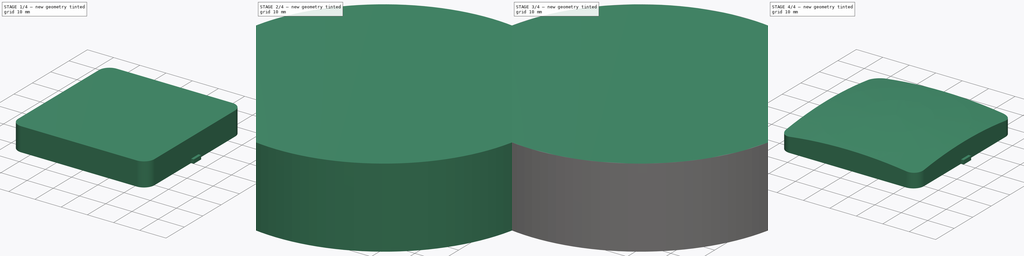
[diagram: build sequence overview — one tinted view per stage of 4, left to right]
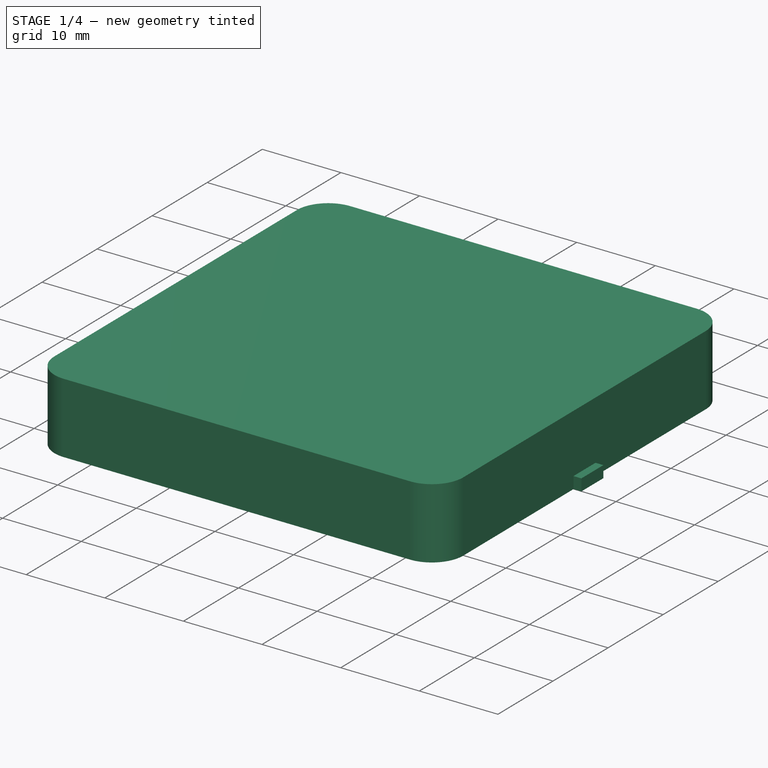
[diagram: stage 1 of 4 — iso view after this stage's code; geometry added in this stage tinted green]
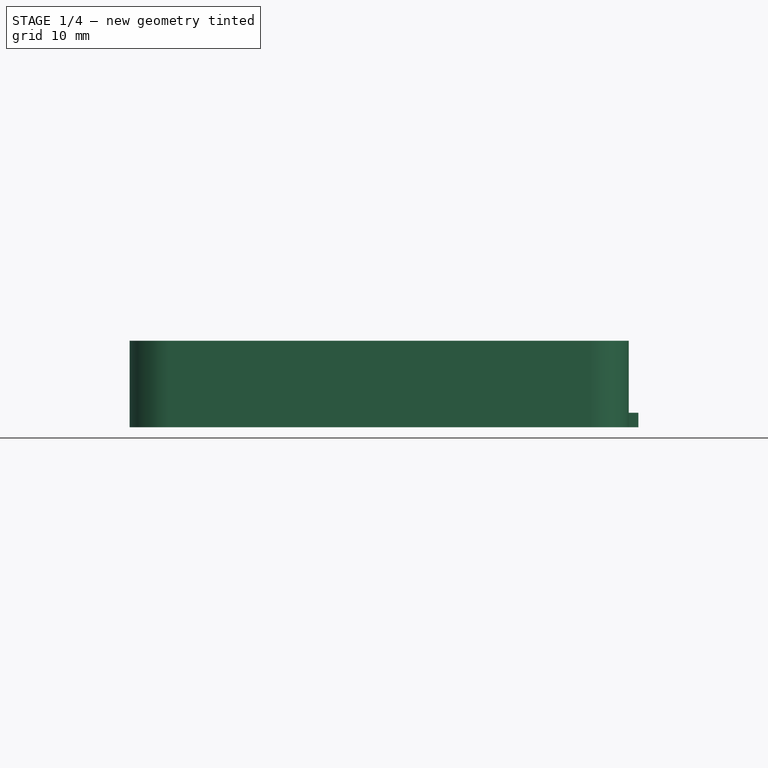
[diagram: stage 1 of 4 — front view after this stage's code; geometry added in this stage tinted green]
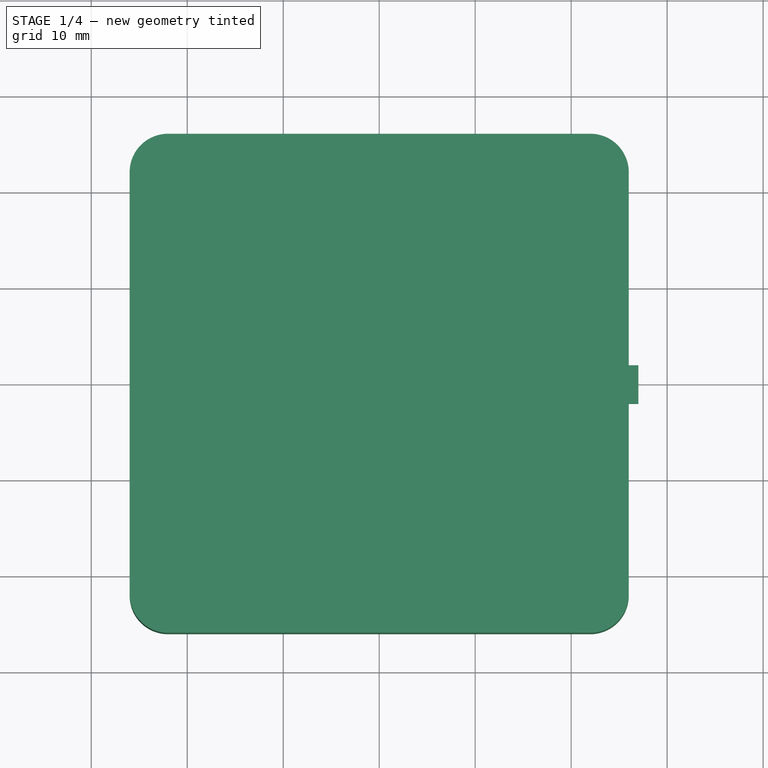
[diagram: stage 1 of 4 — top view after this stage's code; geometry added in this stage tinted green]
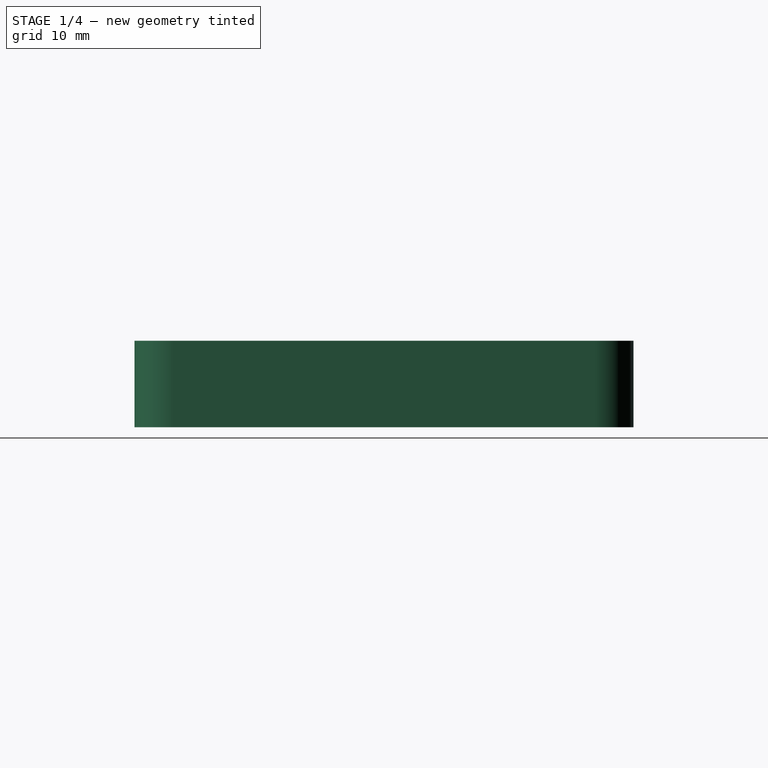
[diagram: stage 1 of 4 — right view after this stage's code; geometry added in this stage tinted green]
FCSTD DOCUMENT  (FreeCAD 0.19.4R1_voidlinux)
Label: front_glassv2
License: All rights reserved
LicenseURL: http://en.wikipedia.org/wiki/All_rights_reserved
objects: Sketcher::SketchObject×5, PartDesign::Body×4, PartDesign::Pad×3, Part::Cut×3, PartDesign::Revolution×2, PartDesign::Mirrored×1, PartDesign::CoordinateSystem×1, App::Part×1
note: 24 computed .brp shape members not serialized (recipe doc carries the construction recipe); baked Part::Feature solids carry a one-line shape summary decoded from their .brp
EXTERNAL_REF file=master_animator.FCStd obj=Variables

FEATURE [PartDesign::Body] Body002  label="external_cut"
  Group = -> [Sketch002,Revolution001]
  Origin = -> Origin003
  Tip = -> Revolution001
FEATURE [Sketcher::SketchObject] Sketch003
  FullyConstrained = true
  MapMode = 5
  Support = -> [XY_Plane004]
  sketch-geometry (10):
    g0: LineSegment StartX=-26 StartY=22 StartZ=0 EndX=-26 EndY=-22 EndZ=0
    g1: LineSegment StartX=26 StartY=22 StartZ=0 EndX=26 EndY=-22 EndZ=0
    g2: LineSegment StartX=-22 StartY=-26 StartZ=0 EndX=22 EndY=-26 EndZ=0
    g3: LineSegment StartX=-22 StartY=26 StartZ=0 EndX=22 EndY=26 EndZ=0
    g4: ArcOfCircle CenterX=-22 CenterY=22 CenterZ=0 NormalX=0 NormalY=0 NormalZ=1 AngleXU=0 Radius=4 StartAngle=1.57079 EndAngle=3.14159
    g5: ArcOfCircle CenterX=22 CenterY=22 CenterZ=0 NormalX=0 NormalY=0 NormalZ=1 AngleXU=0 Radius=4 StartAngle=6.28319 EndAngle=7.85398
    g6: ArcOfCircle CenterX=22 CenterY=-22 CenterZ=0 NormalX=0 NormalY=0 NormalZ=1 AngleXU=0 Radius=4 StartAngle=4.71239 EndAngle=6.28319
    g7: ArcOfCircle CenterX=-22 CenterY=-22 CenterZ=0 NormalX=0 NormalY=0 NormalZ=1 AngleXU=0 Radius=4 StartAngle=3.14159 EndAngle=4.71239
    g8: LineSegment StartX=-22 StartY=26 StartZ=0 EndX=-22 EndY=-26 EndZ=0
    g9: LineSegment StartX=-26 StartY=22 StartZ=0 EndX=26 EndY=22 EndZ=0
  constraints (31):
    c: Vertical(g0)
    c: Vertical(g1)
    c: Horizontal(g2)
    c: Horizontal(g3)
    c: Coincident(g4,g3)
    c: Coincident(g4,g0)
    c: Coincident(g5,g3)
    c: Coincident(g5,g1)
    c: Coincident(g6,g1)
    c: Coincident(g6,g2)
    c: Coincident(g7,g0)
    c: Coincident(g7,g2)
    c: Tangent(g7,g2)
    c: Tangent(g2,g6)
    c: Tangent(g6,g1)
    c: Tangent(g1,g5)
    c: Tangent(g5,g3)
    c: Tangent(g3,g4)
    c: Tangent(g4,g0)
    c: Tangent(g0,g7)
    c: Coincident(g8,g3)
    c: Coincident(g8,g2)
    c: Vertical(g8)
    c: Coincident(g9,g0)
    c: Coincident(g9,g1)
    c: Horizontal(g9)
    c: Equal(g9,g8)
    c: Distance(g8) = 52
    c: Radius(g4) = 4
    c: Equal(g6,g4)
    c: Symmetric(g3,g2,g-1)
FEATURE [PartDesign::Pad] Pad001
  Direction = (1,1,1)
  Length = 9
  Length2 = 100
  Profile = -> Sketch003
  Reversed = true
  Type = 0
FEATURE [Sketcher::SketchObject] Sketch004
  ExternalGeometry = -> [Pad001]
  FullyConstrained = true
  MapMode = 5
  Placement = pos=(26,0,0) rot=(0.57735,0.57735,0.57735;2.0944rad)
  Support = -> [Pad001]
  sketch-geometry (4):
    g0: LineSegment StartX=-2 StartY=-9 StartZ=0 EndX=2 EndY=-9 EndZ=0
    g1: LineSegment StartX=2 StartY=-9 StartZ=0 EndX=2 EndY=-7.5 EndZ=0
    g2: LineSegment StartX=2 StartY=-7.5 StartZ=0 EndX=-2 EndY=-7.5 EndZ=0
    g3: LineSegment StartX=-2 StartY=-7.5 StartZ=0 EndX=-2 EndY=-9 EndZ=0
  constraints (11):
    c: Coincident(g0,g1)
    c: Coincident(g1,g2)
    c: Coincident(g2,g3)
    c: Coincident(g3,g0)
    c: Horizontal(g2)
    c: Vertical(g1)
    c: Vertical(g3)
    c: PointOnObject(g0,g-3)
    c: Distance(g0) = 4
    c: Symmetric(g0,g0,g-2)
    c: Distance(g3) = 1.5
FEATURE [PartDesign::Pad] Pad002
  BaseFeature = -> Pad001
  Direction = (1,1,1)
  Length = 1
  Length2 = 100
  Profile = -> Sketch004
  Type = 0
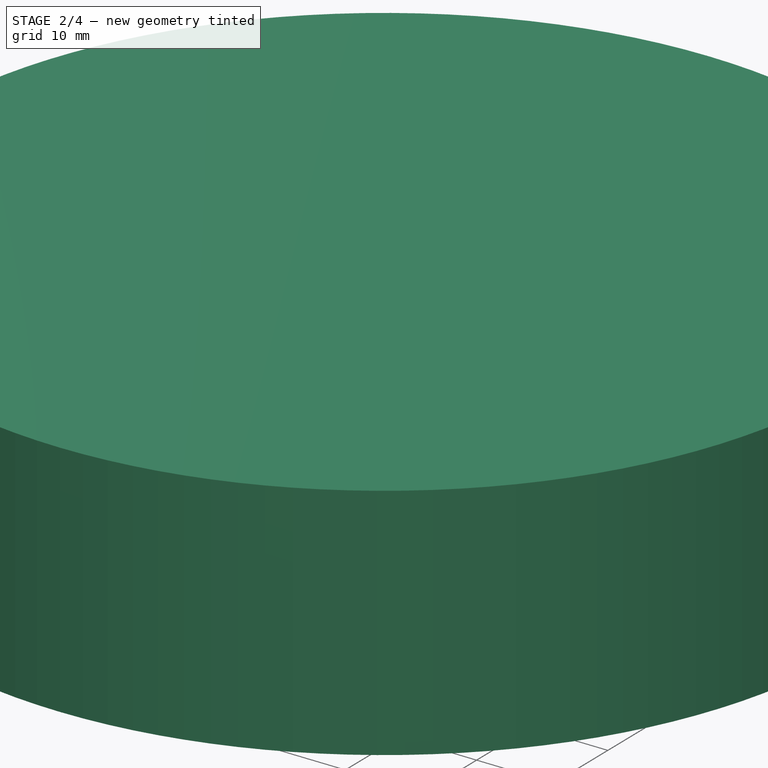
[diagram: stage 2 of 4 — iso view after this stage's code; geometry added in this stage tinted green]
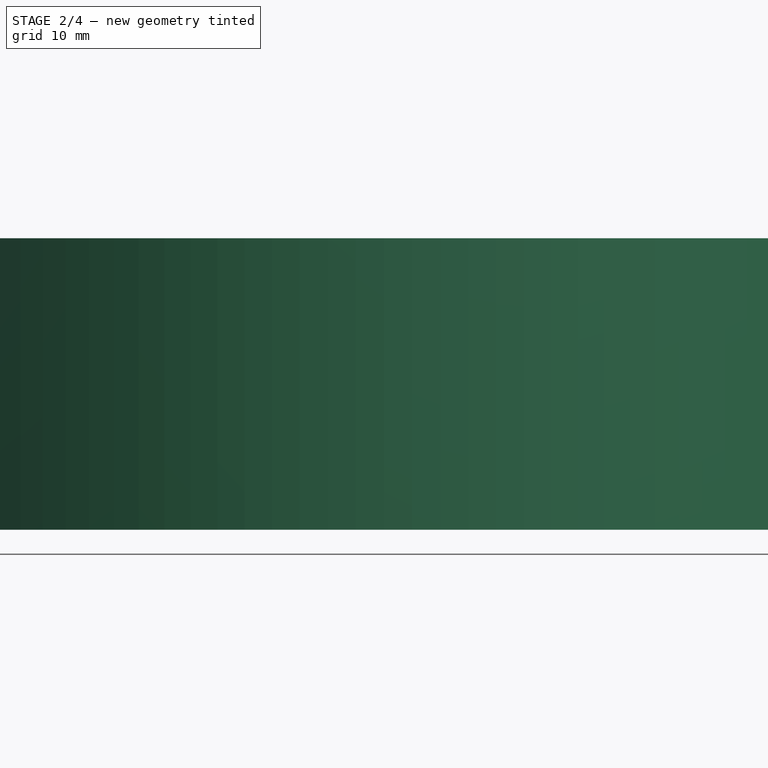
[diagram: stage 2 of 4 — front view after this stage's code; geometry added in this stage tinted green]
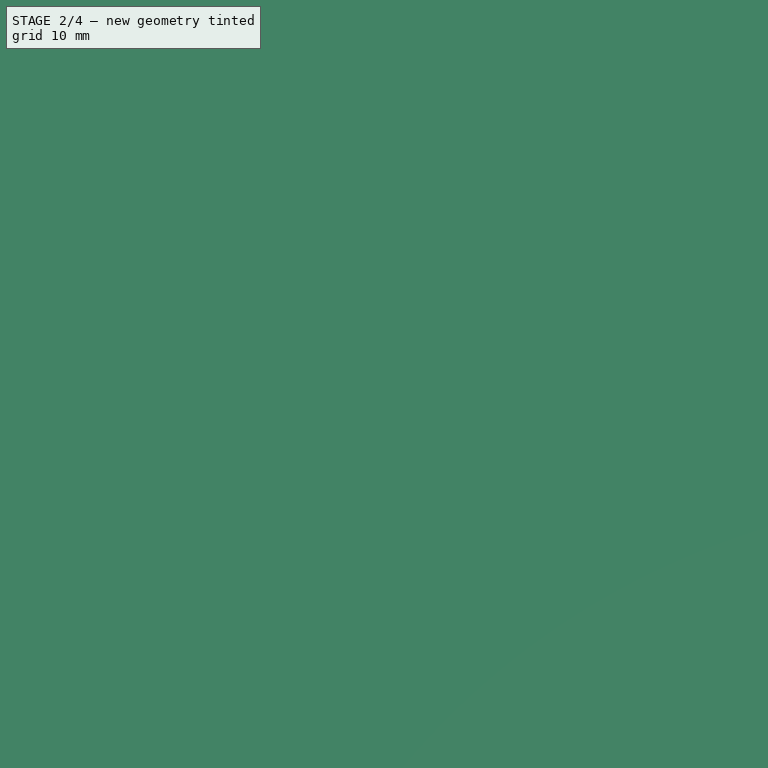
[diagram: stage 2 of 4 — top view after this stage's code; geometry added in this stage tinted green]
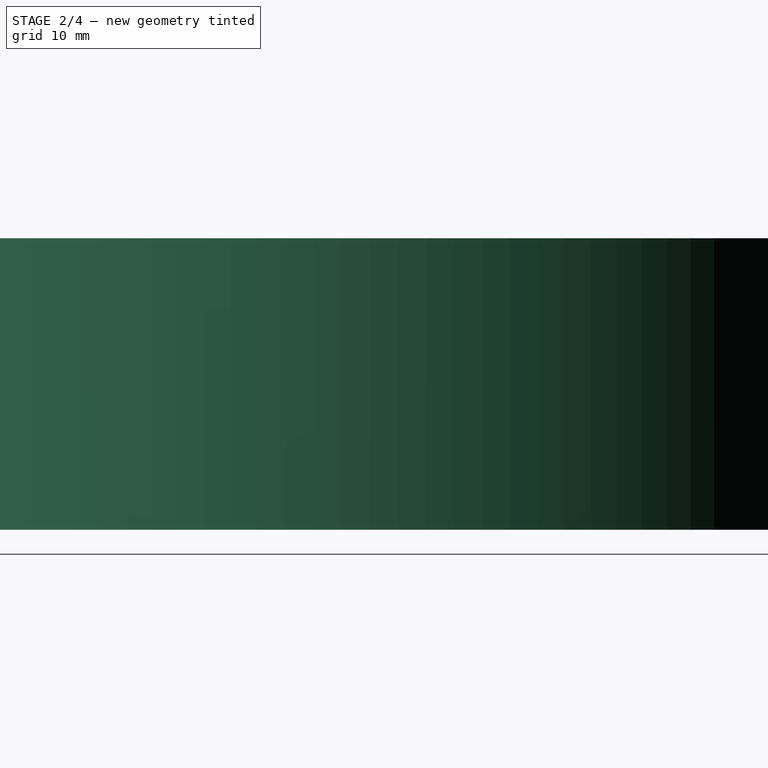
[diagram: stage 2 of 4 — right view after this stage's code; geometry added in this stage tinted green]
FEATURE [Sketcher::SketchObject] Sketch002
  FullyConstrained = true
  MapMode = 5
  Placement = pos=(0,0,0) rot=(0.57735,0.57735,0.57735;2.0944rad)
  Support = -> [YZ_Plane003]
  sketch-geometry (5):
    g0: ArcOfCircle CenterX=0 CenterY=-170 CenterZ=0 NormalX=0 NormalY=0 NormalZ=1 AngleXU=0 Radius=170 StartAngle=1.21008 EndAngle=1.5708
    g1: GeomPoint X=26 Y=-2 Z=0
    g2: LineSegment StartX=60 StartY=-10.9403 StartZ=0 EndX=60 EndY=20 EndZ=0
    g3: LineSegment StartX=60 StartY=20 StartZ=0 EndX=0 EndY=20 EndZ=0
    g4: LineSegment StartX=0 StartY=20 StartZ=0 EndX=1.04e-14 EndY=0 EndZ=0
  constraints (14):
    c: PointOnObject(g0,g-2)
    c: Coincident(g0,g-1)
    c: PointOnObject(g1,g0)
    c: DistanceX(g0,g0) = 60
    c: DistanceX(g0,g1) = 26
    c: DistanceY(g1,g0) = 2
    c: Coincident(g2,g0)
    c: Vertical(g2)
    c: Coincident(g3,g2)
    c: PointOnObject(g3,g-2)
    c: Horizontal(g3)
    c: Coincident(g4,g3)
    c: Coincident(g4,g0)
    c: Distance(g4) = 20
FEATURE [PartDesign::Revolution] Revolution001
  Angle = 360
  Axis = (-2e-16,3e-16,1)
  Base = (0,0,0)
  Placement = pos=(0,0,0) rot=(0.57735,0.57735,0.57735;2.0944rad)
  Profile = -> Sketch002
  ReferenceAxis = -> Sketch002 [V_Axis]
FEATURE [PartDesign::Mirrored] Mirrored
  BaseFeature = -> Pad002
  MirrorPlane = -> YZ_Plane004
  Originals = -> [Pad002]
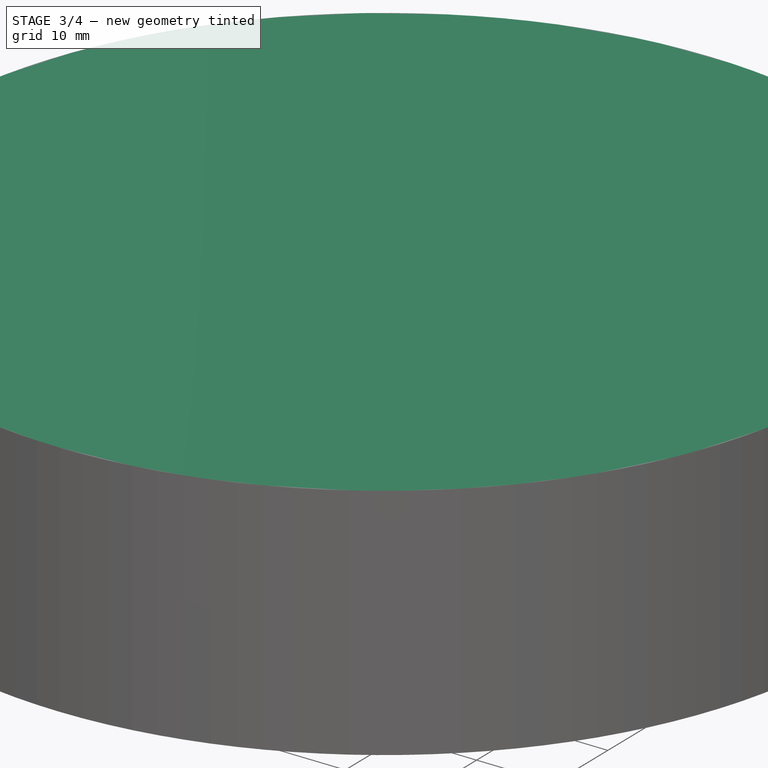
[diagram: stage 3 of 4 — iso view after this stage's code; geometry added in this stage tinted green]
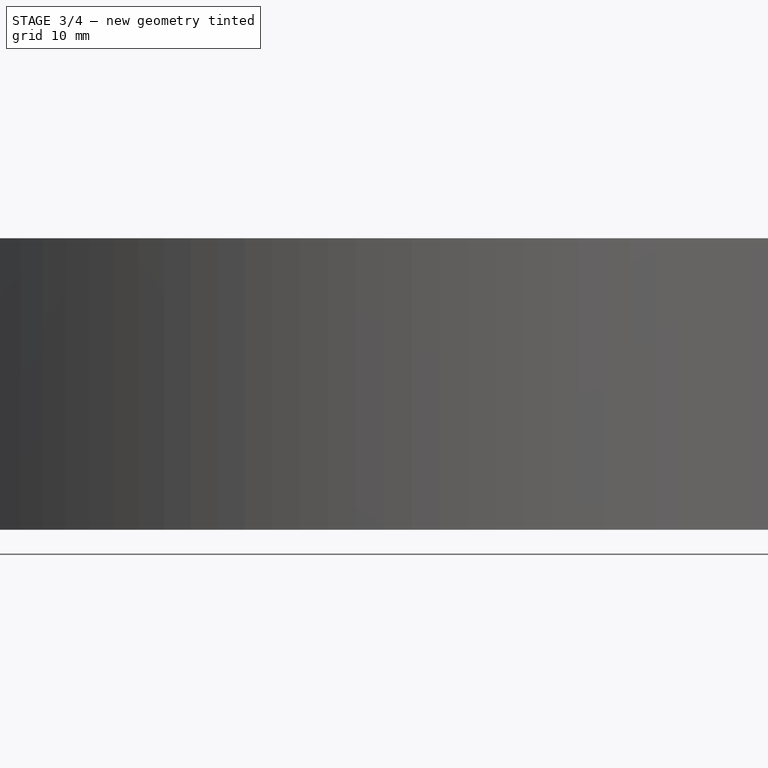
[diagram: stage 3 of 4 — front view after this stage's code; geometry added in this stage tinted green]
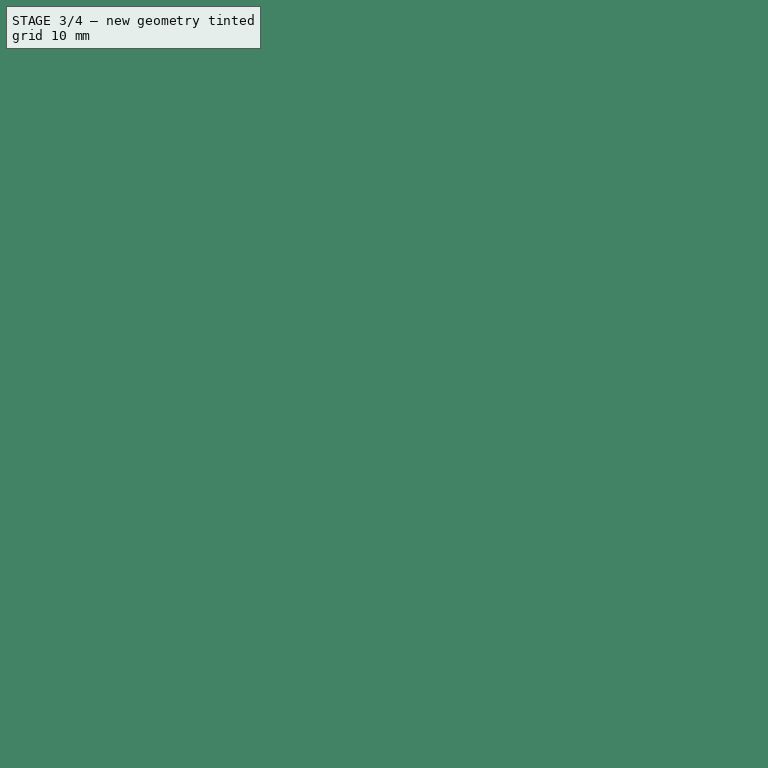
[diagram: stage 3 of 4 — top view after this stage's code; geometry added in this stage tinted green]
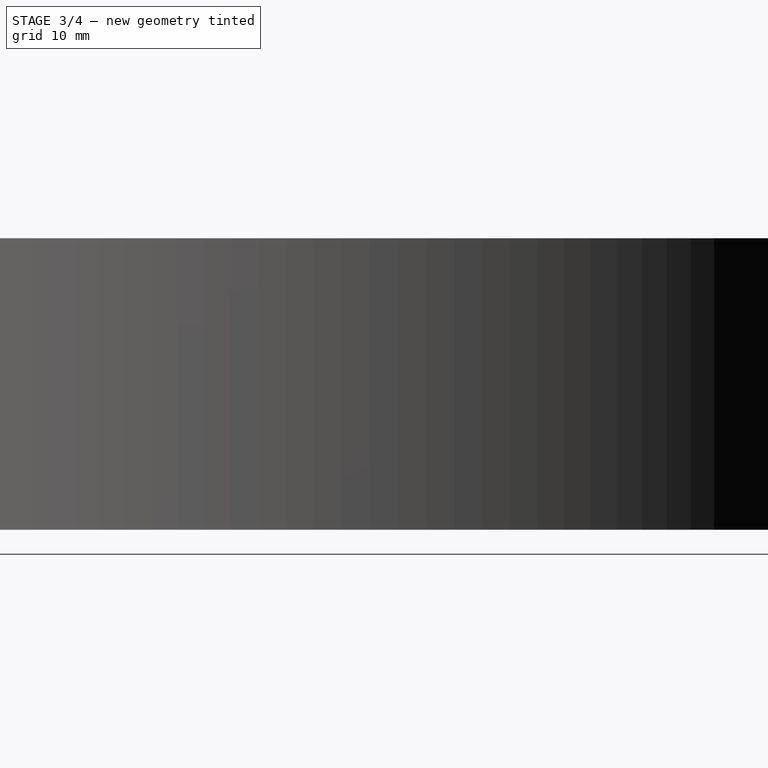
[diagram: stage 3 of 4 — right view after this stage's code; geometry added in this stage tinted green]
FEATURE [Sketcher::SketchObject] Sketch
  FullyConstrained = true
  MapMode = 5
  Placement = pos=(0,0,0) rot=(0.57735,0.57735,0.57735;2.0944rad)
  Support = -> [YZ_Plane001]
  sketch-geometry (5):
    g0: ArcOfCircle CenterX=0 CenterY=-172 CenterZ=0 NormalX=0 NormalY=0 NormalZ=1 AngleXU=0 Radius=170 StartAngle=1.21008 EndAngle=1.5708
    g1: GeomPoint X=26 Y=-4 Z=0
    g2: LineSegment StartX=1.04e-14 StartY=-2 StartZ=0 EndX=0 EndY=18 EndZ=0
    g3: LineSegment StartX=60 StartY=-12.9403 StartZ=0 EndX=60 EndY=18 EndZ=0
    g4: LineSegment StartX=0 StartY=18 StartZ=0 EndX=60 EndY=18 EndZ=0
  constraints (15):
    c: PointOnObject(g0,g-2)
    c: PointOnObject(g0,g-2)
    c: Distance(g-1,g0) = 2
    c: DistanceX(g0,g0) = 60
    c: PointOnObject(g1,g0)
    c: DistanceX(g-2,g1) = 26
    c: DistanceY(g1,g0) = 2
    c: Coincident(g2,g0)
    c: PointOnObject(g2,g-2)
    c: Coincident(g3,g0)
    c: Vertical(g3)
    c: Coincident(g4,g2)
    c: Coincident(g4,g3)
    c: Horizontal(g4)
    c: Distance(g2) = 20
FEATURE [PartDesign::Revolution] Revolution
  Angle = 360
  Axis = (-2e-16,3e-16,1)
  Base = (0,0,0)
  Placement = pos=(0,0,0) rot=(0.57735,0.57735,0.57735;2.0944rad)
  Profile = -> Sketch
  ReferenceAxis = -> Sketch [V_Axis]
FEATURE [PartDesign::Body] Body  label="inner_cut_cap"
  Group = -> [Sketch,Revolution]
  Origin = -> Origin001
  Tip = -> Revolution
FEATURE [Sketcher::SketchObject] Sketch001
  FullyConstrained = true
  MapMode = 5
  Support = -> [XY_Plane002]
  sketch-geometry (10):
    g0: LineSegment StartX=-24.5 StartY=22.2315 StartZ=0 EndX=-24.4915 EndY=-22.2685 EndZ=0
    g1: LineSegment StartX=24.5 StartY=22.2315 StartZ=0 EndX=24.4915 EndY=-22.2685 EndZ=0
    g2: LineSegment StartX=-22.25 StartY=24.5 StartZ=0 EndX=22.25 EndY=24.5 EndZ=0
    g3: LineSegment StartX=-22.25 StartY=-24.5 StartZ=0 EndX=22.25 EndY=-24.5 EndZ=0
    g4: ArcOfCircle CenterX=-21.5721 CenterY=21.5776 CenterZ=0 NormalX=0 NormalY=0 NormalZ=1 AngleXU=0 Radius=3 StartAngle=1.79872 EndAngle=2.92186
    g5: ArcOfCircle CenterX=21.5721 CenterY=21.5776 CenterZ=0 NormalX=0 NormalY=0 NormalZ=1 AngleXU=0 Radius=3 StartAngle=0.219729 EndAngle=1.34287
    g6: ArcOfCircle CenterX=-21.5721 CenterY=-21.5776 CenterZ=0 NormalX=0 NormalY=0 NormalZ=1 AngleXU=0 Radius=3 StartAngle=3.37399 EndAngle=4.48446
    g7: ArcOfCircle CenterX=21.5721 CenterY=-21.5776 CenterZ=0 NormalX=0 NormalY=0 NormalZ=1 AngleXU=0 Radius=3 StartAngle=4.94031 EndAngle=6.05079
    g8: LineSegment StartX=-24.5 StartY=22.2315 StartZ=0 EndX=24.5 EndY=22.2315 EndZ=0
    g9: LineSegment StartX=-22.25 StartY=24.5 StartZ=0 EndX=-22.25 EndY=-24.5 EndZ=0
  constraints (25):
    c: Coincident(g4,g2)
    c: Coincident(g4,g0)
    c: Coincident(g5,g2)
    c: Coincident(g5,g1)
    c: Coincident(g6,g0)
    c: Coincident(g6,g3)
    c: Coincident(g7,g1)
    c: Coincident(g7,g3)
    c: Symmetric(g1,g0,g-2)
    c: Symmetric(g1,g0,g-2)
    c: Symmetric(g2,g3,g-1)
    c: Symmetric(g2,g3,g-1)
    c: Distance(g0) = 44.5
    c: Equal(g0,g2)
    c: Symmetric(g2,g2,g-2)
    c: Distance(g2,g3) = 49
    c: Symmetric(g4,g6,g-1)
    c: Symmetric(g5,g7,g-1)
    c: Coincident(g8,g0)
    c: Coincident(g8,g1)
    c: Coincident(g9,g2)
    c: Coincident(g9,g3)
    c: Equal(g9,g8)
    c: Radius(g4) = 3
    c: Equal(g7,g4)
FEATURE [PartDesign::Pad] Pad
  Direction = (1,1,1)
  Length = 9
  Length2 = 100
  Profile = -> Sketch001
  Reversed = true
  Type = 0
FEATURE [PartDesign::Body] Body003  label="base_shape"
  Group = -> [Sketch003,Pad001,Sketch004,Pad002,Mirrored]
  Origin = -> Origin004
  Tip = -> Mirrored
FEATURE [Part::Cut] Cut001
  Base = -> Body003
  Tool = -> Body002
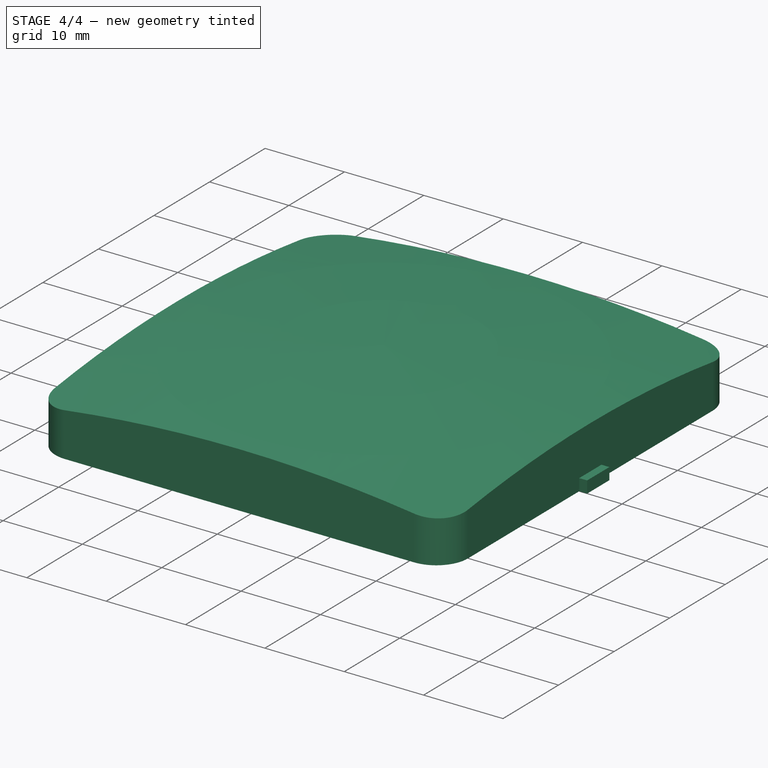
[diagram: stage 4 of 4 — iso view after this stage's code; geometry added in this stage tinted green]
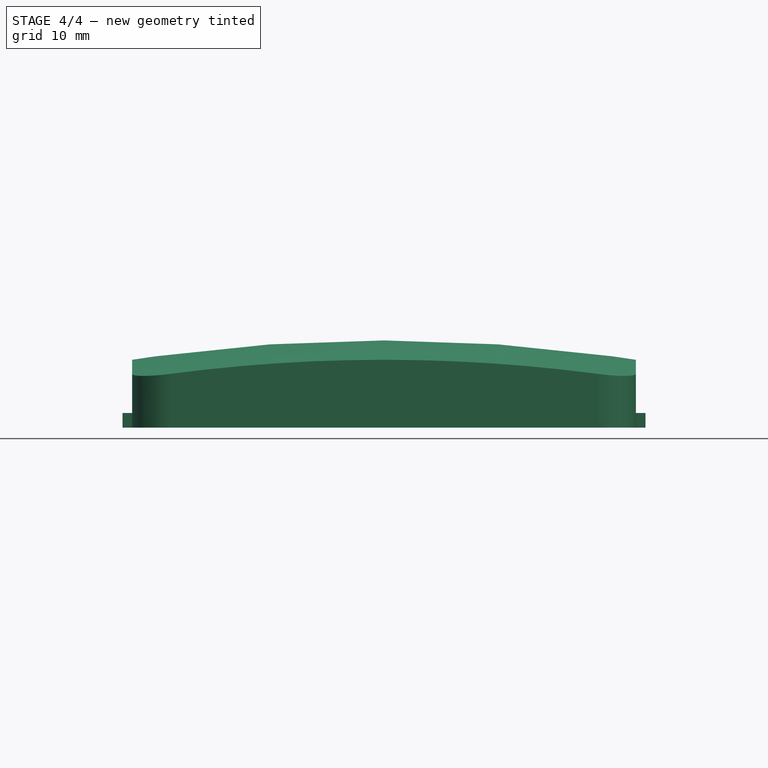
[diagram: stage 4 of 4 — front view after this stage's code; geometry added in this stage tinted green]
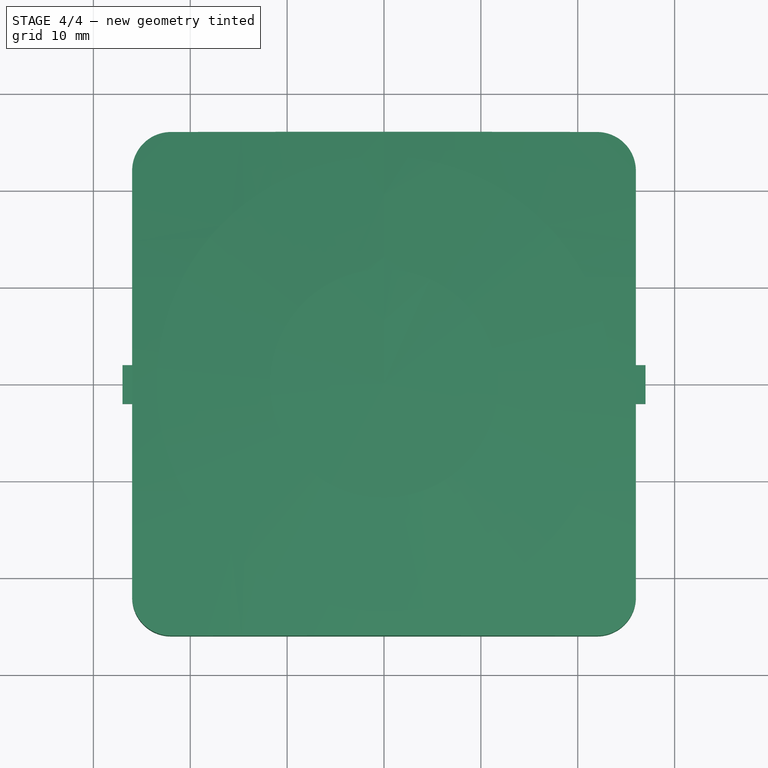
[diagram: stage 4 of 4 — top view after this stage's code; geometry added in this stage tinted green]
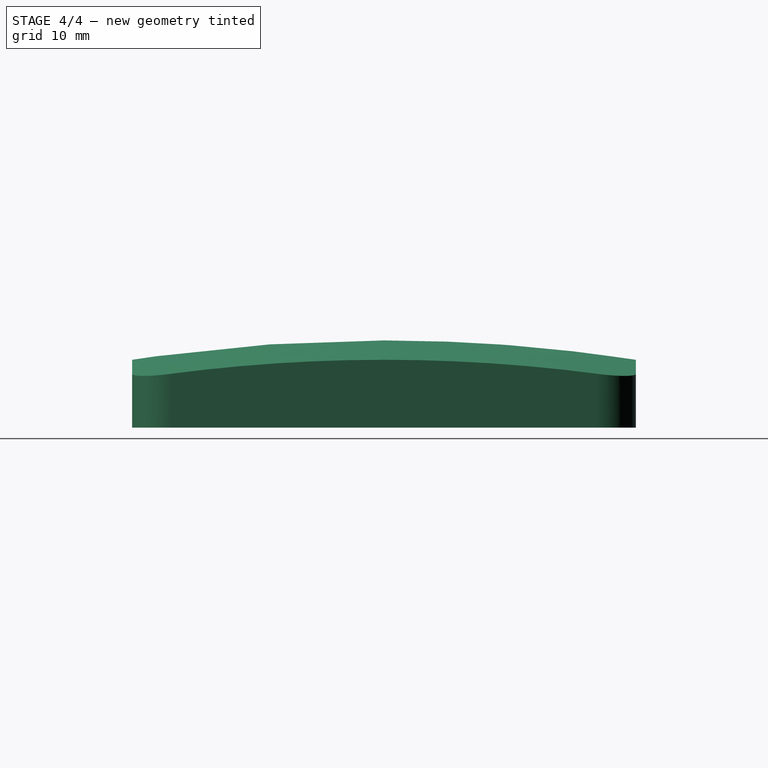
[diagram: stage 4 of 4 — right view after this stage's code; geometry added in this stage tinted green]
FEATURE [PartDesign::Body] Body001
  Group = -> [Sketch001,Pad]
  Origin = -> Origin002
  Tip = -> Pad
FEATURE [Part::Cut] Cut  label="inner_cut"
  Base = -> Body001
  Tool = -> Body
FEATURE [Part::Cut] Cut002
  Base = -> Cut001
  Tool = -> Cut
FEATURE [PartDesign::CoordinateSystem] LCS_bottom_face
  AttacherType = Attacher::AttachEngine3D
  MapMode = 45
  Placement = pos=(-0.000149158,-0.0095018,-9) rot=(0,0,1;1.5708rad)
  Support = -> [Cut002]
  expr: .AttachmentOffset.Base.z = -master_animator#Variables.explode * 10
FEATURE [App::Part] Part  label="front_glass"
  Group = -> [Body,Body001,Cut,Body002,Body003,Cut001,Cut002,LCS_bottom_face]
  Origin = -> Origin
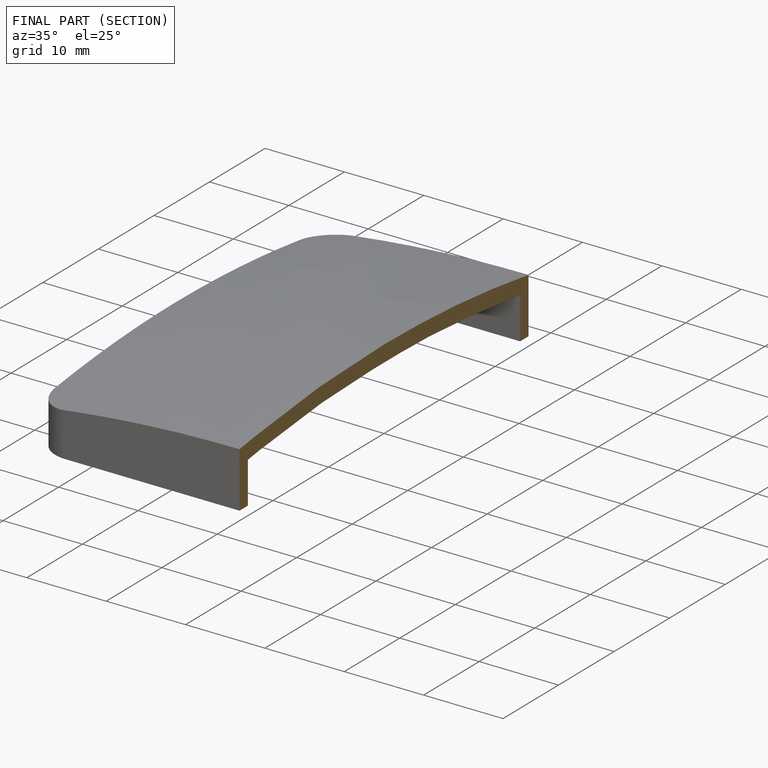
[diagram: finished part — half-section view (interior)]
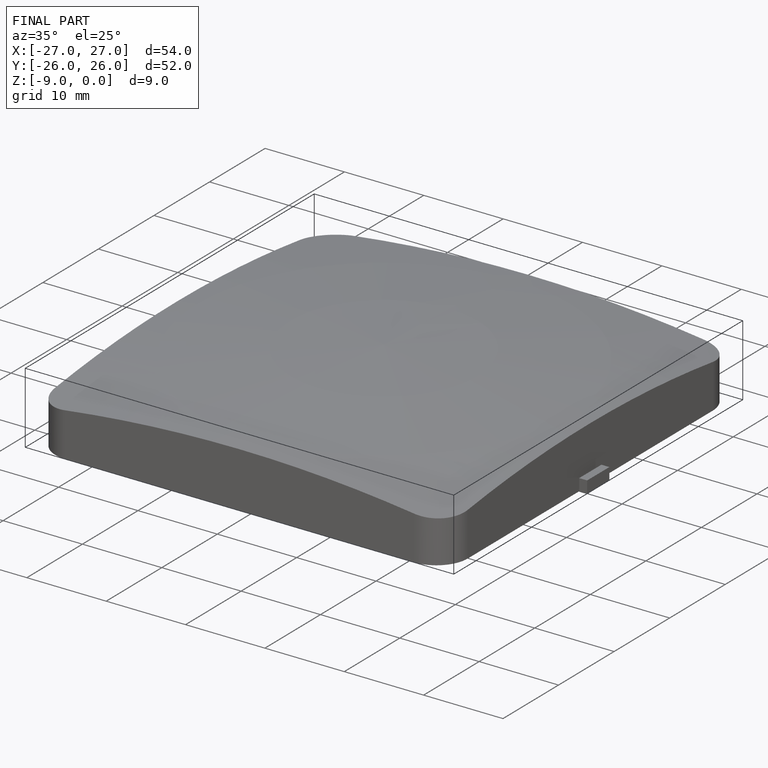
[diagram: finished part — iso view with bounding-box wireframe]
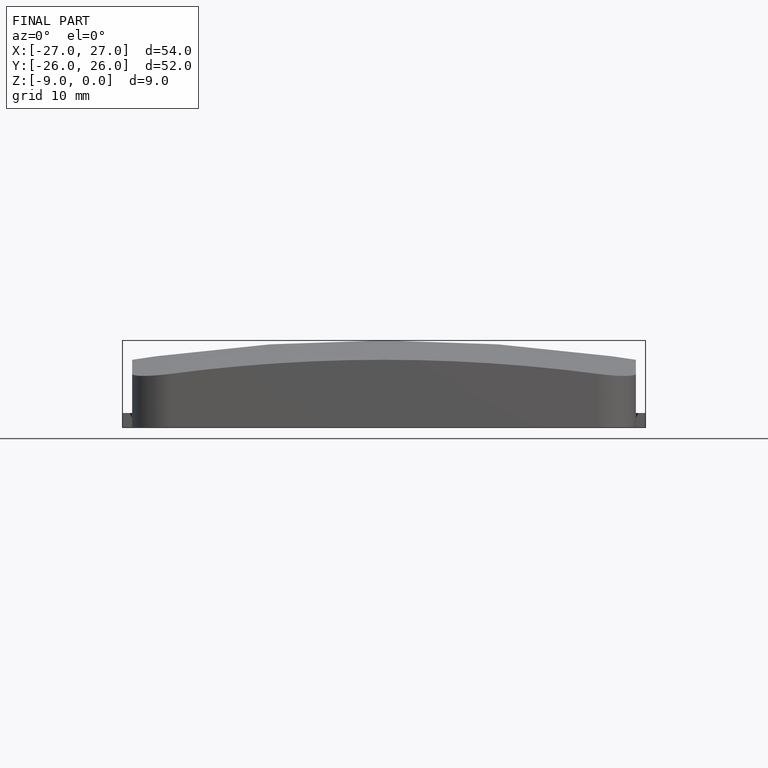
[diagram: finished part — front view with bounding-box wireframe]
